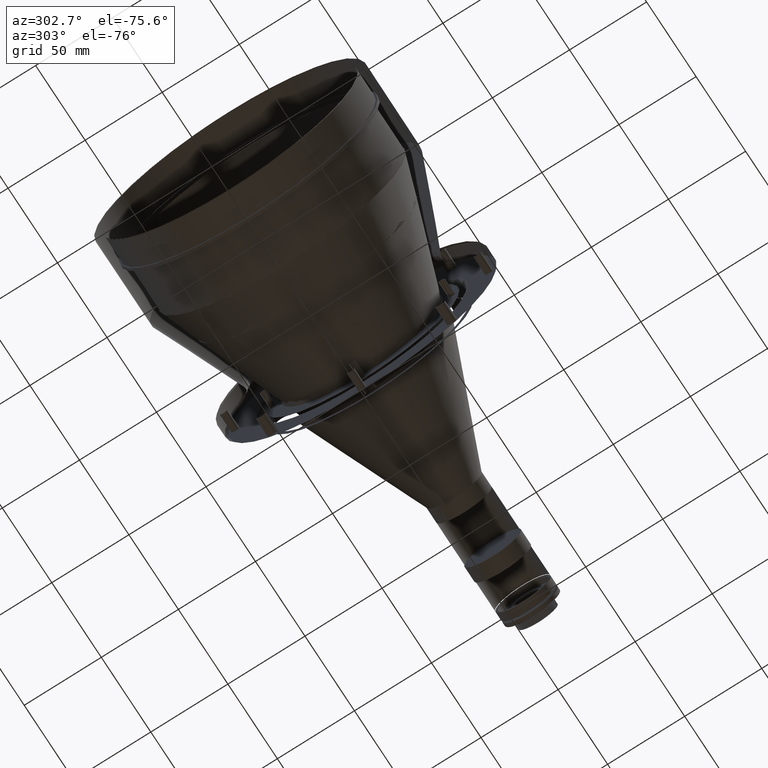
[diagram: clean part render]
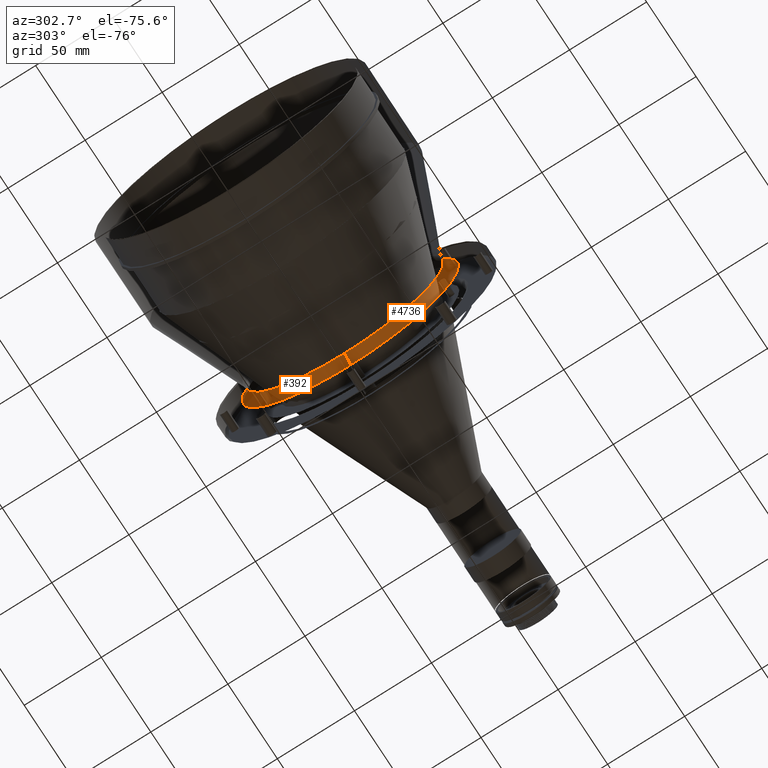
[diagram: same view with one multi-face feature highlighted, each face labeled with its STEP entity id]
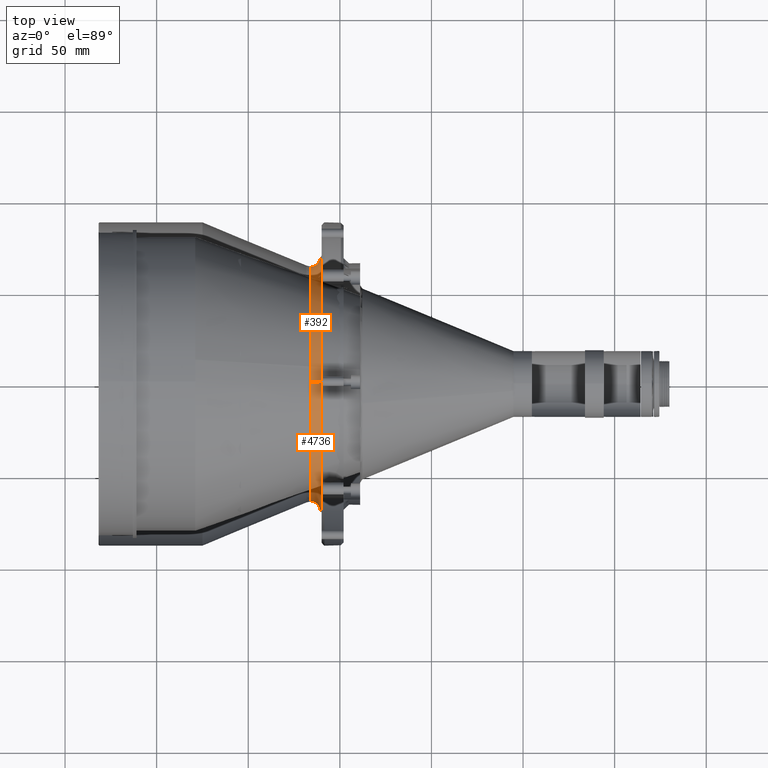
[diagram: same view with one multi-face feature highlighted, each face labeled with its STEP entity id]
A machine part, auxiliary view. The highlighted faces form ONE feature: a constant-radius fillet chain: 2 tangent blend faces with common blend radius 6 mm. The faces share edges in the B-rep.
A second angle (top view) of the same feature is appended — it is thin or edge-on in the first view.
Their STEP definitions:
[1] entity #392 (Torus):
#81 = CARTESIAN_POINT ( 'NONE',  ( 140.0389117160000296, 62.61394275309202584, -100.3879737354864687 ) ) ;
#360 = ORIENTED_EDGE ( 'NONE', *, *, #13179, .F. ) ;
#392 = ADVANCED_FACE ( 'NONE', ( #18336 ), #7775, .T. ) ;
#428 = ORIENTED_EDGE ( 'NONE', *, *, #6944, .F. ) ;
#749 = DIRECTION ( 'NONE',  ( 1.000000000000000000, 2.421996066071979676E-12, -5.161106432370470229E-13 ) ) ;
#831 = CARTESIAN_POINT ( 'NONE',  ( 140.0389117159999728, 55.09309709883009987, -24.49937893880133188 ) ) ;
#1011 = CARTESIAN_POINT ( 'NONE',  ( 140.0389117160000296, 4.616459983185338345, 2.102513476000003489 ) ) ;
#1105 = CARTESIAN_POINT ( 'NONE',  ( 140.0389117160000012, 66.96320889801327780, -89.73943205055067551 ) ) ;
#1201 = CARTESIAN_POINT ( 'NONE',  ( 140.0389117160000296, 68.52517100697217245, -52.24506617826509114 ) ) ;
#1294 = CARTESIAN_POINT ( 'NONE',  ( 140.0389117160000296, 4.616829106233205415, -138.5488212200000078 ) ) ;
#1389 = CARTESIAN_POINT ( 'NONE',  ( 140.0389117160000012, 65.19326546155399171, -94.60237308404200007 ) ) ;
#1483 = CARTESIAN_POINT ( 'NONE',  ( 140.0389117160000012, 45.53878300400462820, -121.9008901287607500 ) ) ;
#2148 = CARTESIAN_POINT ( 'NONE',  ( 140.0389117159999728, 29.03933820854722470, -4.131668312616779914 ) ) ;
#2241 = AXIS2_PLACEMENT_3D ( 'NONE', #13525, #749, #6449 ) ;
#2245 = CARTESIAN_POINT ( 'NONE',  ( 134.0389117164782249, -1.904370999193567992E-09, -3.897486522613487825 ) ) ;
#2377 = CIRCLE ( 'NONE', #4761, 5.999999999601185685 ) ;
#2589 = DIRECTION ( 'NONE',  ( -1.000000000000000000, -2.421996066072001486E-12, 0.000000000000000000 ) ) ;
#2605 = CARTESIAN_POINT ( 'NONE',  ( 140.0389117160000012, 65.82068287535906848, -92.99548972200619801 ) ) ;
#2700 = CARTESIAN_POINT ( 'NONE',  ( 140.0389117160000012, 19.31316452789910088, -135.8545496804984225 ) ) ;
#2794 = CARTESIAN_POINT ( 'NONE',  ( 140.0389117160000296, 67.96583376871690518, -86.43394935691183889 ) ) ;
#2889 = CARTESIAN_POINT ( 'NONE',  ( 140.0389117160000012, 70.32562126730954333, -70.52660402890504088 ) ) ;
#2983 = CARTESIAN_POINT ( 'NONE',  ( 140.0389117160000012, 68.52527341502009506, -84.20091092449521852 ) ) ;
#3542 = CARTESIAN_POINT ( 'NONE',  ( 140.0389117160000296, 38.10962655152689393, -9.115758640691003833 ) ) ;
#3735 = CARTESIAN_POINT ( 'NONE',  ( 140.0389117160000012, 35.66854405140443163, -7.594980634144484100 ) ) ;
#3916 = CARTESIAN_POINT ( 'NONE',  ( 140.0389117160000296, 24.76923098611054641, -2.401078792190936451 ) ) ;
#4010 = CARTESIAN_POINT ( 'NONE',  ( 140.0389117160000012, 31.11959244762582699, -131.3307296118077829 ) ) ;
#4096 = DIRECTION ( 'NONE',  ( -5.161106432370470229E-13, -2.325182194166619101E-28, -1.000000000000000000 ) ) ;
#4100 = CARTESIAN_POINT ( 'NONE',  ( 140.0389117160000580, 35.18293097061838637, -129.1588516842182912 ) ) ;
#4198 = CARTESIAN_POINT ( 'NONE',  ( 140.0389117160000012, 59.75621928426510010, -31.07189369220288100 ) ) ;
#4293 = CARTESIAN_POINT ( 'NONE',  ( 140.0389117159999728, 67.96611279417082585, -50.01315447465621133 ) ) ;
#4388 = CARTESIAN_POINT ( 'NONE',  ( 140.0389117160000296, 22.61884859410232096, -134.8518099291086401 ) ) ;
#4486 = CIRCLE ( 'NONE', #5060, 5.999999999601185685 ) ;
#4761 = AXIS2_PLACEMENT_3D ( 'NONE', #11443, #15436, #2589 ) ;
#5034 = CARTESIAN_POINT ( 'NONE',  ( 140.0389117160000012, 52.90108557894040331, -21.82842950536853266 ) ) ;
#5060 = AXIS2_PLACEMENT_3D ( 'NONE', #12679, #18354, #5892 ) ;
#5108 = CARTESIAN_POINT ( 'NONE',  ( 140.0389117160549688, -6.299545537023749987E-10, 2.102513476001695025 ) ) ;
#5128 = CARTESIAN_POINT ( 'NONE',  ( 140.0389117160549688, -6.299545537023749987E-10, 2.102513476001695025 ) ) ;
#5402 = CARTESIAN_POINT ( 'NONE',  ( 140.0389117160000012, 48.09525343745311687, -119.5833211949514094 ) ) ;
#5495 = CARTESIAN_POINT ( 'NONE',  ( 140.0389117160000296, 50.53678528584167395, -117.1318591143629533 ) ) ;
#5679 = DIRECTION ( 'NONE',  ( 1.000000000000000000, 2.421996066071979676E-12, -5.161106432370470229E-13 ) ) ;
#5784 = CARTESIAN_POINT ( 'NONE',  ( 140.0389117160000012, 70.21277486284913039, -72.82406453838521543 ) ) ;
#5892 = DIRECTION ( 'NONE',  ( 1.000000000000000000, 2.421996066072001486E-12, 0.000000000000000000 ) ) ;
#6449 = DIRECTION ( 'NONE',  ( -2.421926617339998982E-12, 1.000000000000000000, 0.000000000000000000 ) ) ;
#6527 = CARTESIAN_POINT ( 'NONE',  ( 140.0389117160000296, 57.16574766403883245, -27.25842453347788563 ) ) ;
#6706 = CARTESIAN_POINT ( 'NONE',  ( 140.0389117160000012, 49.32070920252439095, -18.08843012745301237 ) ) ;
#6798 = CARTESIAN_POINT ( 'NONE',  ( 140.0389117160000296, 59.72519883490198822, -105.3574486834879593 ) ) ;
#6894 = CARTESIAN_POINT ( 'NONE',  ( 140.0389117159999444, 65.40653106972423814, -94.06907441673344294 ) ) ;
#6926 = VERTEX_POINT ( 'NONE', #7743 ) ;
#6944 = EDGE_CURVE ( 'NONE', #6926, #16007, #8184, .T. ) ;
#6987 = CARTESIAN_POINT ( 'NONE',  ( 140.0389117160050034, -9.449277564153529613E-10, -138.5488212200000078 ) ) ;
#7177 = CARTESIAN_POINT ( 'NONE',  ( 140.0389117160000012, 66.62872158232480047, -45.60425204133498056 ) ) ;
#7743 = CARTESIAN_POINT ( 'NONE',  ( 134.0389117164118602, -1.904378876815830238E-09, -132.5488212204677438 ) ) ;
#7775 = TOROIDAL_SURFACE ( 'NONE', #12854, 70.32566734852831303, 5.999999999601190126 ) ;
#7918 = CARTESIAN_POINT ( 'NONE',  ( 140.0389117160000296, 48.07256431964382415, -16.89010120951225602 ) ) ;
#7958 = CARTESIAN_POINT ( 'NONE',  ( 140.0389117160050034, -9.449277564153529613E-10, -138.5488212200000078 ) ) ;
#7977 = EDGE_LOOP ( 'NONE', ( #428, #8755, #360, #12391 ) ) ;
#8184 = CIRCLE ( 'NONE', #2241, 64.32566734892712645 ) ;
#8281 = CARTESIAN_POINT ( 'NONE',  ( 140.0389117160000296, 70.21271486848033305, -63.62126747136344562 ) ) ;
#8382 = CARTESIAN_POINT ( 'NONE',  ( 140.0389117159999728, 14.84792246246515646, -136.9656886841766266 ) ) ;
#8469 = CARTESIAN_POINT ( 'NONE',  ( 140.0389117160000296, 39.54944484710537012, -126.3769507467089284 ) ) ;
#8563 = CARTESIAN_POINT ( 'NONE',  ( 140.0389117160000012, 60.63112610097160626, -103.8875741106042057 ) ) ;
#8755 = ORIENTED_EDGE ( 'NONE', *, *, #9498, .F. ) ;
#9221 = CARTESIAN_POINT ( 'NONE',  ( 140.0389117160000012, 51.35580871162044048, -20.12342480933051192 ) ) ;
#9314 = CARTESIAN_POINT ( 'NONE',  ( 140.0389117160000012, 23.15100655904891624, -1.799374085094685327 ) ) ;
#9494 = CARTESIAN_POINT ( 'NONE',  ( 140.0389117159999728, 31.12001872851683260, -5.115846715377502463 ) ) ;
#9498 = EDGE_CURVE ( 'NONE', #17210, #6926, #4486, .T. ) ;
#9588 = CARTESIAN_POINT ( 'NONE',  ( 140.0389117160000012, 56.15499972886610891, -25.86002398730168039 ) ) ;
#9679 = CARTESIAN_POINT ( 'NONE',  ( 140.0389117160000296, 50.13584801125286106, -117.5427680416634360 ) ) ;
#9772 = CARTESIAN_POINT ( 'NONE',  ( 140.0389117160000580, 29.03971477783385780, -132.3144445561964062 ) ) ;
#9859 = CARTESIAN_POINT ( 'NONE',  ( 134.0389117164450283, -1.904378876815830238E-09, -68.22315387154061739 ) ) ;
#9866 = CARTESIAN_POINT ( 'NONE',  ( 140.0389117160000296, 64.05756516270183454, -39.19417578920300116 ) ) ;
#9960 = CARTESIAN_POINT ( 'NONE',  ( 140.0389117159999728, 14.28603163794232778, -137.0846487375162610 ) ) ;
#10059 = CARTESIAN_POINT ( 'NONE',  ( 140.0389117160000012, 64.08890507998049202, -97.26849963386167985 ) ) ;
#10601 = VERTEX_POINT ( 'NONE', #5108 ) ;
#10618 = CARTESIAN_POINT ( 'NONE',  ( 140.0389117159999728, 25.84393308245637400, -2.815747803364315960 ) ) ;
#10802 = CARTESIAN_POINT ( 'NONE',  ( 140.0389117160000296, 19.33195058477154049, -0.5374881028502794811 ) ) ;
#11084 = CARTESIAN_POINT ( 'NONE',  ( 140.0389117160000012, 69.42355916617705702, -56.76153077970492689 ) ) ;
#11177 = CARTESIAN_POINT ( 'NONE',  ( 140.0389117160000012, 63.33871901338608268, -37.62430206295293544 ) ) ;
#11269 = CARTESIAN_POINT ( 'NONE',  ( 140.0389117160000012, 55.82365351347963411, -111.0566947088348968 ) ) ;
#11366 = CARTESIAN_POINT ( 'NONE',  ( 140.0389117160000296, 52.50451584911728986, -115.0344312090771410 ) ) ;
#11443 = CARTESIAN_POINT ( 'NONE',  ( 134.0389117164813229, -1.904370264405488701E-09, 2.102513476987699637 ) ) ;
#11462 = CARTESIAN_POINT ( 'NONE',  ( 140.0389117160000296, 51.33015292944863717, -116.2985884105789864 ) ) ;
#12114 = CARTESIAN_POINT ( 'NONE',  ( 140.0389117160000296, 46.80766551958656407, -15.71482057615189021 ) ) ;
#12206 = CARTESIAN_POINT ( 'NONE',  ( 140.0389117160000296, 37.13754782817276379, -8.500172325593050360 ) ) ;
#12297 = CARTESIAN_POINT ( 'NONE',  ( 140.0389117160000012, 43.76213413998979718, -13.08736012781833402 ) ) ;
#12391 = ORIENTED_EDGE ( 'NONE', *, *, #14262, .T. ) ;
#12477 = CARTESIAN_POINT ( 'NONE',  ( 140.0389117160000012, 58.79337994681597479, -106.8154121533362115 ) ) ;
#12571 = CARTESIAN_POINT ( 'NONE',  ( 140.0389117159999728, 57.19460322115657647, -109.2082702260050411 ) ) ;
#12665 = CARTESIAN_POINT ( 'NONE',  ( 140.0389117160000012, 69.76120895055224480, -77.40847186433497029 ) ) ;
#12679 = CARTESIAN_POINT ( 'NONE',  ( 134.0389117164087338, -1.904378876815830238E-09, -138.5488212200689304 ) ) ;
#12854 = AXIS2_PLACEMENT_3D ( 'NONE', #9859, #5679, #4096 ) ;
#12858 = CARTESIAN_POINT ( 'NONE',  ( 140.0389117160000296, 70.32558533520784749, -65.91970371509516724 ) ) ;
#13179 = EDGE_CURVE ( 'NONE', #10601, #17210, #14646, .T. ) ;
#13525 = CARTESIAN_POINT ( 'NONE',  ( 134.0389117164450283, -1.904378876815830238E-09, -68.22315387154061739 ) ) ;
#13701 = CARTESIAN_POINT ( 'NONE',  ( 140.0389117160000296, 48.90686820100299315, -17.68456077741986476 ) ) ;
#13791 = CARTESIAN_POINT ( 'NONE',  ( 140.0389117159999728, 9.190614244399329280, 1.651823463259052494 ) ) ;
#13880 = CARTESIAN_POINT ( 'NONE',  ( 140.0389117160000296, 58.15297591981973824, -28.67243155460853643 ) ) ;
#13971 = CARTESIAN_POINT ( 'NONE',  ( 140.0389117160000296, 64.75205522028312544, -40.77879646908850475 ) ) ;
#14067 = CARTESIAN_POINT ( 'NONE',  ( 140.0389117160000296, 9.190101498916764200, -138.0983066100050394 ) ) ;
#14159 = CARTESIAN_POINT ( 'NONE',  ( 140.0389117160000012, 66.42192470496125623, -91.37805196246060291 ) ) ;
#14252 = CARTESIAN_POINT ( 'NONE',  ( 140.0389117160000012, 15.97078562774367683, -136.7135684027466311 ) ) ;
#14262 = EDGE_CURVE ( 'NONE', #10601, #16007, #2377, .T. ) ;
#14646 = B_SPLINE_CURVE_WITH_KNOTS ( 'NONE', 3,
 ( #5128, #1011, #13791, #17704, #10802, #9314, #3916, #10618, #14918, #2148, #9494, #17793, #3735, #12206, #3542, #15009, #16478, #12297, #12114, #7918, #13701, #6706, #9221, #5034, #831, #9588, #6527, #17976, #13880, #4198, #15738, #11177, #9866, #15453, #13971, #15551, #7177, #4293, #1201, #11084, #15644, #8281, #12858, #2889, #5784, #12665, #16854, #2983, #2794, #1105, #14159, #2605, #6894, #1389, #10059, #81, #8563, #6798, #18253, #12477, #12571, #11269, #18161, #11366, #11462, #5495, #9679, #5402, #1483, #17138, #16760, #16946, #8469, #17042, #4100, #4010, #9772, #15362, #4388, #2700, #18432, #14252, #8382, #9960, #14067, #1294, #6987 ),
 .UNSPECIFIED., .F., .F.,
 ( 4, 2, 1, 1, 2, 2, 2, 1, 2, 2, 1, 1, 2, 2, 2, 1, 2, 2, 1, 1, 2, 2, 2, 2, 2, 2, 2, 2, 2, 1, 2, 2, 1, 1, 2, 2, 2, 1, 2, 2, 1, 1, 2, 2, 2, 2, 2, 1, 2, 2, 4 ),
 ( 0.000000000000000000, 0.06249999999999887590, 0.09374999999999829303, 0.1093749999999979877, 0.1171874999999978212, 0.1249999999999976547, 0.1562499999999969746, 0.1718749999999966416, 0.1796874999999964750, 0.1874999999999963085, 0.2187499999999955591, 0.2343749999999952260, 0.2421874999999950595, 0.2499999999999948930, 0.2812499999999942824, 0.2968749999999939493, 0.3046874999999937828, 0.3124999999999936717, 0.3437499999999932832, 0.3593749999999930611, 0.3671874999999928946, 0.3749999999999927836, 0.4062499999999923950, 0.4374999999999920619, 0.4687499999999917288, 0.4999999999999914513, 0.5312499999999912292, 0.5624999999999910072, 0.5937499999999907851, 0.6093749999999905631, 0.6171874999999906741, 0.6249999999999907851, 0.6562499999999912292, 0.6718749999999914513, 0.6796874999999915623, 0.6874999999999916733, 0.7187499999999913403, 0.7343749999999912292, 0.7421874999999913403, 0.7499999999999913403, 0.7812499999999917843, 0.7968749999999921174, 0.8046874999999923395, 0.8124999999999924505, 0.8437499999999936717, 0.8749999999999948930, 0.9062499999999961142, 0.9218749999999967804, 0.9296874999999970024, 0.9374999999999973355, 1.000000000000000000 ),
 .UNSPECIFIED. ) ;
#14918 = CARTESIAN_POINT ( 'NONE',  ( 140.0389117160000012, 26.38074531818731572, -3.030477452097694702 ) ) ;
#15009 = CARTESIAN_POINT ( 'NONE',  ( 140.0389117160000012, 38.59093374504448803, -9.428876972705046100 ) ) ;
#15362 = CARTESIAN_POINT ( 'NONE',  ( 140.0389117160000296, 24.78521118200835360, -134.0767352589276982 ) ) ;
#15436 = DIRECTION ( 'NONE',  ( -2.421996066071979676E-12, 1.000000000000000000, -1.224646786647173744E-16 ) ) ;
#15453 = CARTESIAN_POINT ( 'NONE',  ( 140.0389117160000012, 64.52432926894559273, -40.24743501407193236 ) ) ;
#15551 = CARTESIAN_POINT ( 'NONE',  ( 140.0389117159999444, 65.85374604506351659, -43.43836087361706433 ) ) ;
#15644 = CARTESIAN_POINT ( 'NONE',  ( 140.0389117160000580, 69.76126896790309218, -59.03881161165276126 ) ) ;
#15738 = CARTESIAN_POINT ( 'NONE',  ( 140.0389117159999728, 61.53051140199863767, -34.03136914574285754 ) ) ;
#16007 = VERTEX_POINT ( 'NONE', #2245 ) ;
#16478 = CARTESIAN_POINT ( 'NONE',  ( 140.0389117159999728, 40.99036293554159016, -11.03215579411637570 ) ) ;
#16760 = CARTESIAN_POINT ( 'NONE',  ( 140.0389117160000296, 40.96819773170196299, -125.3866073243010675 ) ) ;
#16854 = CARTESIAN_POINT ( 'NONE',  ( 140.0389117160000296, 69.42345676385967579, -79.68510760667483339 ) ) ;
#16946 = CARTESIAN_POINT ( 'NONE',  ( 140.0389117160000012, 40.02624346647846210, -126.0498845937905230 ) ) ;
#17042 = CARTESIAN_POINT ( 'NONE',  ( 140.0389117160000012, 37.15631852729801921, -127.9760720482293124 ) ) ;
#17138 = CARTESIAN_POINT ( 'NONE',  ( 140.0389117160000012, 42.36765951142601949, -124.3753045637997303 ) ) ;
#17210 = VERTEX_POINT ( 'NONE', #7958 ) ;
#17704 = CARTESIAN_POINT ( 'NONE',  ( 140.0389117160000012, 15.98441864487622510, 0.3005427373932583746 ) ) ;
#17793 = CARTESIAN_POINT ( 'NONE',  ( 140.0389117160000012, 34.16688319942474550, -6.744352286291008802 ) ) ;
#17976 = CARTESIAN_POINT ( 'NONE',  ( 140.0389117160000012, 57.82821191085103862, -28.19908167485667150 ) ) ;
#18161 = CARTESIAN_POINT ( 'NONE',  ( 140.0389117160000012, 53.63181313156050578, -113.7275205700975960 ) ) ;
#18253 = CARTESIAN_POINT ( 'NONE',  ( 140.0389117159999728, 59.10876983510557636, -106.3307085855638832 ) ) ;
#18336 = FACE_OUTER_BOUND ( 'NONE', #7977, .T. ) ;
#18354 = DIRECTION ( 'NONE',  ( 2.421996066071979676E-12, -1.000000000000000000, -1.250017947578006855E-24 ) ) ;
#18432 = CARTESIAN_POINT ( 'NONE',  ( 140.0389117160000012, 17.64983825652545946, -136.3148564050100049 ) ) ;
[2] entity #4736 (Torus):
#39 = CARTESIAN_POINT ( 'NONE',  ( 140.0389117160000012, -67.96583376883999961, -50.01235838754523400 ) ) ;
#132 = CARTESIAN_POINT ( 'NONE',  ( 140.0389117159999728, -66.42192470485392164, -45.06825578113948438 ) ) ;
#224 = CARTESIAN_POINT ( 'NONE',  ( 140.0389117160000580, -57.19460322109362238, -27.23803751787749761 ) ) ;
#316 = CARTESIAN_POINT ( 'NONE',  ( 140.0389117160000012, -69.42345676383713737, -56.76120013721928359 ) ) ;
#405 = CARTESIAN_POINT ( 'NONE',  ( 140.0389117160000012, -59.75621928413686135, -105.3744140520584267 ) ) ;
#584 = CARTESIAN_POINT ( 'NONE',  ( 140.0389117160000296, -40.96819773182386371, -11.05970041980961227 ) ) ;
#679 = CARTESIAN_POINT ( 'NONE',  ( 140.0389117160000012, -35.18293096972024614, -7.287456059401475450 ) ) ;
#1538 = CARTESIAN_POINT ( 'NONE',  ( 140.0389117160000012, -60.63112610078268006, -32.55873363315429003 ) ) ;
#1634 = CARTESIAN_POINT ( 'NONE',  ( 140.0389117160000296, -58.79337994682911273, -29.63089559069513612 ) ) ;
#1725 = CARTESIAN_POINT ( 'NONE',  ( 140.0389117160000296, -66.62872158230499053, -90.84205570271593899 ) ) ;
#1817 = CARTESIAN_POINT ( 'NONE',  ( 140.0389117160000296, -61.53051140177601752, -102.4149385987158638 ) ) ;
#1904 = CARTESIAN_POINT ( 'NONE',  ( 140.0389117160000012, -48.90686820097980814, -118.7617469666209615 ) ) ;
#1966 = AXIS2_PLACEMENT_3D ( 'NONE', #3877, #15514, #9461 ) ;
#1993 = CARTESIAN_POINT ( 'NONE',  ( 140.0389117159999728, -45.53878300425693482, -14.54541761546867562 ) ) ;
#2245 = CARTESIAN_POINT ( 'NONE',  ( 134.0389117164782249, -1.904370999193567992E-09, -3.897486522613487825 ) ) ;
#2268 = CARTESIAN_POINT ( 'NONE',  ( 140.0389117160000012, -9.190101498505514499, 1.651998866005067734 ) ) ;
#2362 = CARTESIAN_POINT ( 'NONE',  ( 140.0389117160000296, -42.36765951161558519, -12.07100318037224262 ) ) ;
#2377 = CIRCLE ( 'NONE', #4761, 5.999999999601185685 ) ;
#2589 = DIRECTION ( 'NONE',  ( -1.000000000000000000, -2.421996066072001486E-12, 0.000000000000000000 ) ) ;
#2677 = ORIENTED_EDGE ( 'NONE', *, *, #14262, .F. ) ;
#2940 = CARTESIAN_POINT ( 'NONE',  ( 140.0389117160000012, -65.19326546159000202, -41.84393466000428674 ) ) ;
#3033 = CARTESIAN_POINT ( 'NONE',  ( 140.0389117160000012, -15.98441864449593197, -136.7468504815213066 ) ) ;
#3126 = CARTESIAN_POINT ( 'NONE',  ( 140.0389117160000012, -40.99036293549473697, -125.4141519499736575 ) ) ;
#3211 = CARTESIAN_POINT ( 'NONE',  ( 140.0389117160000296, -46.80766551952429921, -120.7314871679652555 ) ) ;
#3300 = CARTESIAN_POINT ( 'NONE',  ( 140.0389117160000012, -65.82068287527475547, -43.45081802167961627 ) ) ;
#3494 = CARTESIAN_POINT ( 'NONE',  ( 134.0389117164450283, -1.904378876815830238E-09, -68.22315387154061739 ) ) ;
#3671 = CARTESIAN_POINT ( 'NONE',  ( 140.0389117160000012, -31.11959244852372564, -5.115578132571733327 ) ) ;
#3877 = CARTESIAN_POINT ( 'NONE',  ( 134.0389117164450283, -1.904378876815830238E-09, -68.22315387154061739 ) ) ;
#4061 = CARTESIAN_POINT ( 'NONE',  ( 140.0389117160000296, -4.616459982656336614, -138.5488212200000362 ) ) ;
#4345 = CARTESIAN_POINT ( 'NONE',  ( 140.0389117160000296, -68.52517100700130470, -84.20124156563024087 ) ) ;
#4439 = CARTESIAN_POINT ( 'NONE',  ( 140.0389117160000012, -64.75205522030024952, -95.66751127485989059 ) ) ;
#4486 = CIRCLE ( 'NONE', #5060, 5.999999999601185685 ) ;
#4533 = CARTESIAN_POINT ( 'NONE',  ( 140.0389117160000580, -51.33015292936600105, -20.14771933335110887 ) ) ;
#4616 = CARTESIAN_POINT ( 'NONE',  ( 140.0389117160000012, -65.85374604499651241, -93.00794687058954935 ) ) ;
#4704 = CARTESIAN_POINT ( 'NONE',  ( 140.0389117160000012, -29.03933820849127301, -132.3146394314349550 ) ) ;
#4736 = ADVANCED_FACE ( 'NONE', ( #16242 ), #14672, .T. ) ;
#4761 = AXIS2_PLACEMENT_3D ( 'NONE', #11443, #15436, #2589 ) ;
#4982 = DIRECTION ( 'NONE',  ( -5.161106432370470229E-13, -2.325182194166619101E-28, -1.000000000000000000 ) ) ;
#5060 = AXIS2_PLACEMENT_3D ( 'NONE', #12679, #18354, #5892 ) ;
#5108 = CARTESIAN_POINT ( 'NONE',  ( 140.0389117160549688, -6.299545537023749987E-10, 2.102513476001695025 ) ) ;
#5615 = EDGE_CURVE ( 'NONE', #16007, #6926, #16838, .T. ) ;
#5739 = CARTESIAN_POINT ( 'NONE',  ( 140.0389117160000296, -38.59093374505633278, -127.0174307712728989 ) ) ;
#5836 = CARTESIAN_POINT ( 'NONE',  ( 140.0389117160000296, -49.32070920249633872, -118.3578776165831101 ) ) ;
#5892 = DIRECTION ( 'NONE',  ( 1.000000000000000000, 2.421996066072001486E-12, 0.000000000000000000 ) ) ;
#5926 = CARTESIAN_POINT ( 'NONE',  ( 140.0389117160000296, -55.82365351359889871, -25.38961303526838620 ) ) ;
#6018 = CARTESIAN_POINT ( 'NONE',  ( 140.0389117159999444, -53.63181313150083440, -22.71878717385127189 ) ) ;
#6103 = CARTESIAN_POINT ( 'NONE',  ( 140.0389117160000012, -37.13754782799139775, -127.9461354184884243 ) ) ;
#6283 = CARTESIAN_POINT ( 'NONE',  ( 140.0389117160000012, -37.15631852829825021, -8.470235696405298498 ) ) ;
#6926 = VERTEX_POINT ( 'NONE', #7743 ) ;
#6968 = ORIENTED_EDGE ( 'NONE', *, *, #5615, .F. ) ;
#7230 = CARTESIAN_POINT ( 'NONE',  ( 140.0389117160000012, -59.72519883477973934, -31.08885906035740021 ) ) ;
#7322 = CARTESIAN_POINT ( 'NONE',  ( 140.0389117159999728, -23.15100655854963208, -134.6469336590731700 ) ) ;
#7409 = CARTESIAN_POINT ( 'NONE',  ( 140.0389117160000296, -69.76126896792565901, -77.40749613184897271 ) ) ;
#7495 = CARTESIAN_POINT ( 'NONE',  ( 140.0389117160000012, -57.16574766379144279, -109.1878832108377537 ) ) ;
#7583 = CARTESIAN_POINT ( 'NONE',  ( 140.0389117160000012, -70.21277486278563629, -63.62224320532654076 ) ) ;
#7671 = CARTESIAN_POINT ( 'NONE',  ( 140.0389117160000296, -22.61884859449739693, -1.594497815011676423 ) ) ;
#7743 = CARTESIAN_POINT ( 'NONE',  ( 134.0389117164118602, -1.904378876815830238E-09, -132.5488212204677438 ) ) ;
#7958 = CARTESIAN_POINT ( 'NONE',  ( 140.0389117160050034, -9.449277564153529613E-10, -138.5488212200000078 ) ) ;
#8616 = CARTESIAN_POINT ( 'NONE',  ( 140.0389117160000296, -62.61394275284131083, -36.05833400819071244 ) ) ;
#8711 = CARTESIAN_POINT ( 'NONE',  ( 140.0389117160000012, -48.07256431960325926, -119.5562065345624916 ) ) ;
#8803 = CARTESIAN_POINT ( 'NONE',  ( 140.0389117160000296, -51.35580871172567186, -116.3228829345176365 ) ) ;
#8889 = CARTESIAN_POINT ( 'NONE',  ( 140.0389117160000012, -55.09309709865080862, -111.9469288054289677 ) ) ;
#8978 = CARTESIAN_POINT ( 'NONE',  ( 140.0389117160000012, -64.52432926888631926, -96.19887273005105044 ) ) ;
#9066 = CARTESIAN_POINT ( 'NONE',  ( 140.0389117160000012, -17.64983825617954238, -0.1314513388854403331 ) ) ;
#9344 = CARTESIAN_POINT ( 'NONE',  ( 140.0389117160000296, -4.616829105822038315, 2.102513475999999937 ) ) ;
#9434 = CARTESIAN_POINT ( 'NONE',  ( 140.0389117160000296, -24.78521118206995411, -2.369572485091554270 ) ) ;
#9461 = DIRECTION ( 'NONE',  ( -2.421926617339998982E-12, 1.000000000000000000, 0.000000000000000000 ) ) ;
#9498 = EDGE_CURVE ( 'NONE', #17210, #6926, #4486, .T. ) ;
#9568 = ORIENTED_EDGE ( 'NONE', *, *, #14670, .F. ) ;
#10014 = CARTESIAN_POINT ( 'NONE',  ( 140.0389117160000012, -65.40653106967064900, -42.37723332706668344 ) ) ;
#10112 = CARTESIAN_POINT ( 'NONE',  ( 140.0389117160000012, -69.42355916614066302, -79.68477696439857993 ) ) ;
#10205 = EDGE_LOOP ( 'NONE', ( #6968, #2677, #9568, #15648 ) ) ;
#10208 = CARTESIAN_POINT ( 'NONE',  ( 140.0389117159999728, -56.15499972855211297, -110.5862837571008015 ) ) ;
#10292 = CARTESIAN_POINT ( 'NONE',  ( 140.0389117159999444, -68.52527341503584069, -52.24539681961213233 ) ) ;
#10376 = CARTESIAN_POINT ( 'NONE',  ( 140.0389117159999728, -67.96611279419103369, -86.43315326929287323 ) ) ;
#10464 = CARTESIAN_POINT ( 'NONE',  ( 140.0389117160000012, -29.03971477777124122, -4.131863187785668856 ) ) ;
#10601 = VERTEX_POINT ( 'NONE', #5108 ) ;
#10740 = CARTESIAN_POINT ( 'NONE',  ( 140.0389117160000012, -50.13584801121510282, -18.90353970230552605 ) ) ;
#11419 = CARTESIAN_POINT ( 'NONE',  ( 140.0389117160000296, -25.84393308227784658, -133.6305599406953775 ) ) ;
#11443 = CARTESIAN_POINT ( 'NONE',  ( 134.0389117164813229, -1.904370264405488701E-09, 2.102513476987699637 ) ) ;
#11512 = CARTESIAN_POINT ( 'NONE',  ( 140.0389117159999728, -31.12001872878051500, -131.3304610285033789 ) ) ;
#11603 = CARTESIAN_POINT ( 'NONE',  ( 140.0389117160000580, -52.50451584901277613, -21.41187653483328290 ) ) ;
#11692 = CARTESIAN_POINT ( 'NONE',  ( 140.0389117160000012, -50.53678528578846851, -19.31444862959317987 ) ) ;
#11779 = CARTESIAN_POINT ( 'NONE',  ( 140.0389117160000012, -38.10962655141155153, -127.3305491033610224 ) ) ;
#11861 = CARTESIAN_POINT ( 'NONE',  ( 140.0389117159999728, -19.31316452770141368, -0.5917580634420804842 ) ) ;
#12249 = DIRECTION ( 'NONE',  ( 1.000000000000000000, 2.421996066071979676E-12, -5.161106432370470229E-13 ) ) ;
#12679 = CARTESIAN_POINT ( 'NONE',  ( 134.0389117164087338, -1.904378876815830238E-09, -138.5488212200689304 ) ) ;
#12914 = CARTESIAN_POINT ( 'NONE',  ( 140.0389117159999728, -69.76120895060833504, -59.03783587995386029 ) ) ;
#13006 = CARTESIAN_POINT ( 'NONE',  ( 140.0389117160000012, -57.82821191069280076, -108.2472260693435402 ) ) ;
#13097 = CARTESIAN_POINT ( 'NONE',  ( 140.0389117160000012, -70.32562126733900243, -65.91970371573620469 ) ) ;
#13185 = CARTESIAN_POINT ( 'NONE',  ( 140.0389117160000012, -63.33871901321958120, -98.82200568139131747 ) ) ;
#13275 = CARTESIAN_POINT ( 'NONE',  ( 140.0389117160000012, -14.84792246229222101, 0.5193809402290894273 ) ) ;
#14262 = EDGE_CURVE ( 'NONE', #10601, #16007, #2377, .T. ) ;
#14307 = CARTESIAN_POINT ( 'NONE',  ( 140.0389117159999728, -34.16688319929271955, -129.7019554577678662 ) ) ;
#14371 = AXIS2_PLACEMENT_3D ( 'NONE', #3494, #12249, #4982 ) ;
#14403 = CARTESIAN_POINT ( 'NONE',  ( 140.0389117160000012, -59.10876983503670345, -30.11559915835092127 ) ) ;
#14498 = CARTESIAN_POINT ( 'NONE',  ( 140.0389117160000296, -43.76213413990755896, -123.3589476163386962 ) ) ;
#14583 = CARTESIAN_POINT ( 'NONE',  ( 140.0389117160000296, -58.15297591984931103, -107.7738761893241559 ) ) ;
#14670 = EDGE_CURVE ( 'NONE', #17210, #10601, #17501, .T. ) ;
#14672 = TOROIDAL_SURFACE ( 'NONE', #14371, 70.32566734852831303, 5.999999999601190126 ) ;
#14673 = CARTESIAN_POINT ( 'NONE',  ( 140.0389117159999728, -35.66854405117356919, -128.8513271099590156 ) ) ;
#14765 = CARTESIAN_POINT ( 'NONE',  ( 140.0389117160000580, -39.54944484685546513, -10.06935699713281274 ) ) ;
#14855 = CARTESIAN_POINT ( 'NONE',  ( 140.0389117159999728, -48.09525343759653282, -16.86298654918040540 ) ) ;
#15124 = CARTESIAN_POINT ( 'NONE',  ( 140.0389117160549688, -6.299545537023749987E-10, 2.102513476001695025 ) ) ;
#15436 = DIRECTION ( 'NONE',  ( -2.421996066071979676E-12, 1.000000000000000000, -1.224646786647173744E-16 ) ) ;
#15514 = DIRECTION ( 'NONE',  ( 1.000000000000000000, 2.421996066071979676E-12, -5.161106432370470229E-13 ) ) ;
#15648 = ORIENTED_EDGE ( 'NONE', *, *, #9498, .T. ) ;
#15694 = CARTESIAN_POINT ( 'NONE',  ( 140.0389117160000296, -64.08890507983750240, -39.17780810995380847 ) ) ;
#15790 = CARTESIAN_POINT ( 'NONE',  ( 140.0389117160000012, -9.190614245159922646, -138.0981312070024671 ) ) ;
#15880 = CARTESIAN_POINT ( 'NONE',  ( 140.0389117159999728, -24.76923098578944504, -134.0452289519168687 ) ) ;
#15963 = CARTESIAN_POINT ( 'NONE',  ( 140.0389117160000012, -26.38074531820093327, -133.4158302918887387 ) ) ;
#16007 = VERTEX_POINT ( 'NONE', #2245 ) ;
#16049 = CARTESIAN_POINT ( 'NONE',  ( 140.0389117160000296, -70.32558533517901367, -70.52660402826384711 ) ) ;
#16143 = CARTESIAN_POINT ( 'NONE',  ( 140.0389117160000012, -14.28603163799372489, 0.6383409935164561233 ) ) ;
#16242 = FACE_OUTER_BOUND ( 'NONE', #10205, .T. ) ;
#16416 = CARTESIAN_POINT ( 'NONE',  ( 140.0389117160000296, -40.02624346654628340, -10.39642315027106001 ) ) ;
#16809 = CARTESIAN_POINT ( 'NONE',  ( 140.0389117160050034, -9.449277564153529613E-10, -138.5488212200000078 ) ) ;
#16838 = CIRCLE ( 'NONE', #1966, 64.32566734892712645 ) ;
#17094 = CARTESIAN_POINT ( 'NONE',  ( 140.0389117160000580, -52.90108557929898581, -114.6178782381721106 ) ) ;
#17190 = CARTESIAN_POINT ( 'NONE',  ( 140.0389117160000012, -64.05756516259491207, -97.25213195501837049 ) ) ;
#17210 = VERTEX_POINT ( 'NONE', #7958 ) ;
#17284 = CARTESIAN_POINT ( 'NONE',  ( 140.0389117160000296, -19.33195058410601064, -135.9088196413738387 ) ) ;
#17371 = CARTESIAN_POINT ( 'NONE',  ( 140.0389117160000012, -66.96320889795198639, -46.70687569322078758 ) ) ;
#17457 = CARTESIAN_POINT ( 'NONE',  ( 140.0389117160000012, -70.21271486845033394, -72.82504027313406425 ) ) ;
#17501 = B_SPLINE_CURVE_WITH_KNOTS ( 'NONE', 3,
 ( #16809, #4061, #15790, #3033, #17284, #7322, #15880, #11419, #15963, #4704, #11512, #14307, #14673, #6103, #11779, #5739, #3126, #14498, #3211, #8711, #1904, #5836, #8803, #17094, #8889, #10208, #7495, #13006, #14583, #405, #1817, #13185, #17190, #8978, #4439, #4616, #1725, #10376, #4345, #10112, #7409, #17457, #16049, #13097, #7583, #12914, #316, #10292, #39, #17371, #132, #3300, #10014, #2940, #15694, #8616, #1538, #7230, #14403, #1634, #224, #5926, #6018, #11603, #4533, #11692, #10740, #14855, #1993, #2362, #584, #16416, #14765, #6283, #679, #3671, #10464, #9434, #7671, #11861, #9066, #17915, #13275, #16143, #2268, #9344, #15124 ),
 .UNSPECIFIED., .F., .F.,
 ( 4, 2, 1, 1, 2, 2, 2, 1, 2, 2, 1, 1, 2, 2, 2, 1, 2, 2, 1, 1, 2, 2, 2, 2, 2, 2, 2, 2, 2, 1, 2, 2, 1, 1, 2, 2, 2, 1, 2, 2, 1, 1, 2, 2, 2, 2, 2, 1, 2, 2, 4 ),
 ( 0.000000000000000000, 0.06249999999999786282, 0.09374999999999678035, 0.1093749999999962530, 0.1171874999999960310, 0.1249999999999958367, 0.1562499999999955314, 0.1718749999999953371, 0.1796874999999953371, 0.1874999999999953093, 0.2187499999999950318, 0.2343749999999950040, 0.2421874999999950040, 0.2499999999999950040, 0.2812499999999947264, 0.2968749999999946154, 0.3046874999999945044, 0.3124999999999943934, 0.3437499999999938938, 0.3593749999999936717, 0.3671874999999936717, 0.3749999999999936717, 0.4062499999999936717, 0.4374999999999936162, 0.4687499999999936162, 0.4999999999999936717, 0.5312499999999936717, 0.5624999999999937828, 0.5937499999999937828, 0.6093749999999937828, 0.6171874999999938938, 0.6249999999999938938, 0.6562499999999942268, 0.6718749999999943379, 0.6796874999999944489, 0.6874999999999944489, 0.7187499999999950040, 0.7343749999999952260, 0.7421874999999952260, 0.7499999999999953371, 0.7812499999999957812, 0.7968749999999961142, 0.8046874999999962252, 0.8124999999999964473, 0.8437499999999968914, 0.8749999999999973355, 0.9062499999999978906, 0.9218749999999981126, 0.9296874999999983347, 0.9374999999999984457, 1.000000000000000000 ),
 .UNSPECIFIED. ) ;
#17915 = CARTESIAN_POINT ( 'NONE',  ( 140.0389117160000296, -15.97078562747192620, 0.2672606588289109242 ) ) ;
#18354 = DIRECTION ( 'NONE',  ( 2.421996066071979676E-12, -1.000000000000000000, -1.250017947578006855E-24 ) ) ;